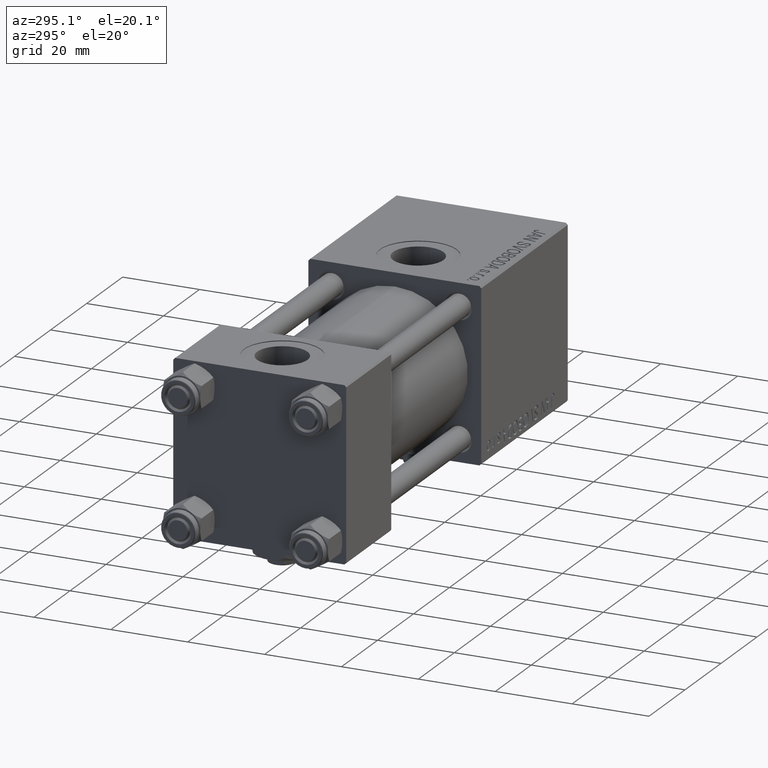
[diagram: clean part render]
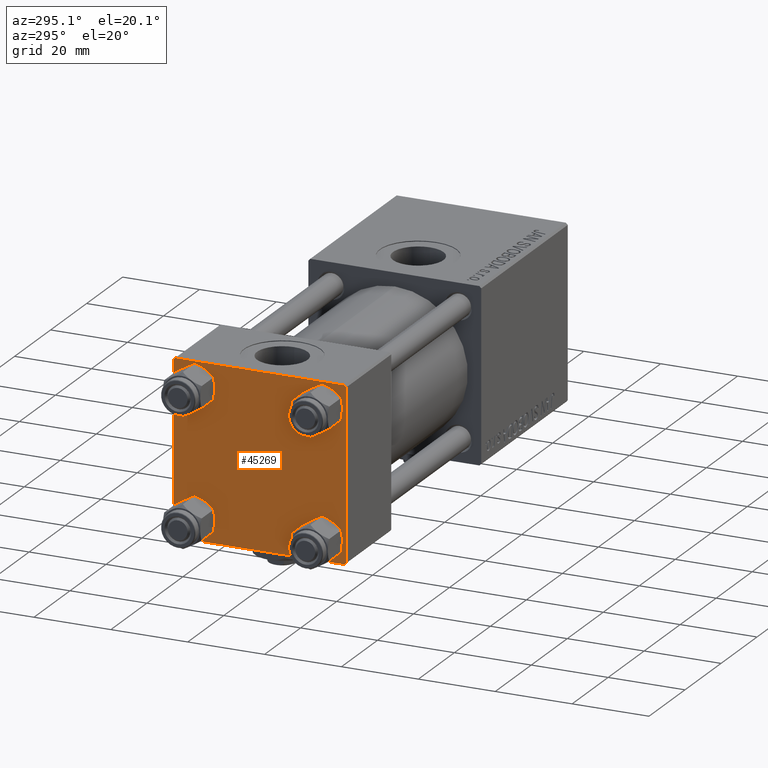
[diagram: same view with one face highlighted and labeled with its STEP entity id]
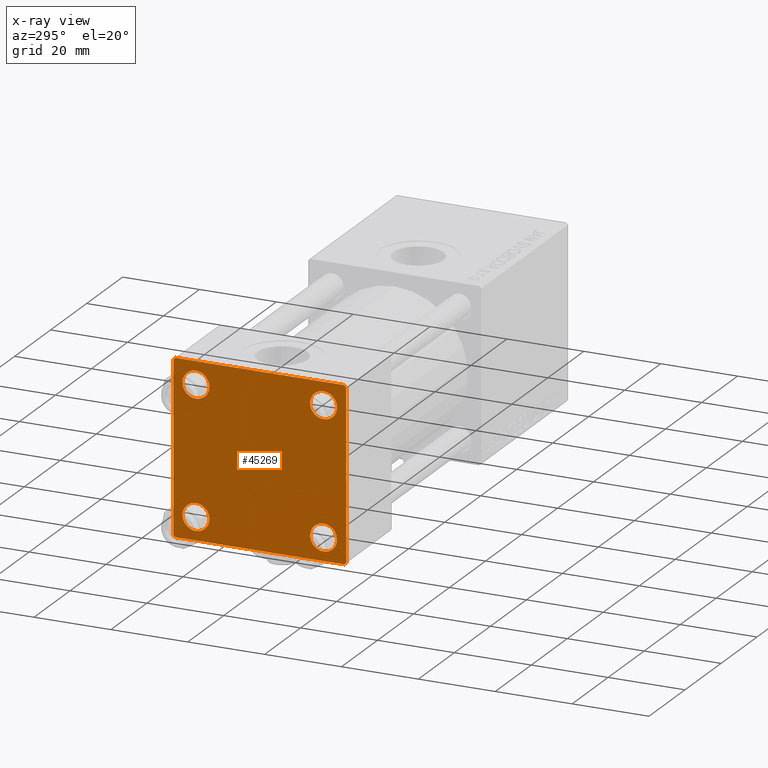
[diagram: x-ray of the same camera — body ghosted, the highlighted face saturated]
A machine part, auxiliary view. The second image highlights one B-rep face of the part: STEP entity #45269.
The next image is the same camera in x-ray: the body ghosted, the highlighted face saturated — about 0% of this face is hidden behind the body in this view.
In plain terms, the highlighted planar face has unit normal (-1, 0, 0).
Its self-contained STEP definition (entity closure, byte-faithful):
#962 = EDGE_CURVE ( 'NONE', #35257, #9221, #41090, .T. ) ;
#1004 = DIRECTION ( 'NONE',  ( 0.000000000000000000, -1.000000000000000000, -7.709882115452476934E-17 ) ) ;
#1393 = ORIENTED_EDGE ( 'NONE', *, *, #43350, .T. ) ;
#1483 = AXIS2_PLACEMENT_3D ( 'NONE', #48618, #40942, #16328 ) ;
#1850 = VERTEX_POINT ( 'NONE', #9843 ) ;
#2342 = DIRECTION ( 'NONE',  ( 1.000000000000000000, -0.000000000000000000, 0.000000000000000000 ) ) ;
#2411 = DIRECTION ( 'NONE',  ( 1.000000000000000000, -0.000000000000000000, 0.000000000000000000 ) ) ;
#2828 = CARTESIAN_POINT ( 'NONE',  ( 0.000000000000000000, 22.50000000000000000, -22.49999999999999645 ) ) ;
#3217 = ORIENTED_EDGE ( 'NONE', *, *, #11549, .F. ) ;
#4116 = FACE_BOUND ( 'NONE', #34199, .T. ) ;
#4137 = CARTESIAN_POINT ( 'NONE',  ( 0.000000000000000000, 16.59999999999999787, -13.10000000000000675 ) ) ;
#4379 = DIRECTION ( 'NONE',  ( -0.000000000000000000, 0.000000000000000000, 1.000000000000000000 ) ) ;
#4381 = DIRECTION ( 'NONE',  ( 1.000000000000000000, -0.000000000000000000, 0.000000000000000000 ) ) ;
#5042 = EDGE_LOOP ( 'NONE', ( #48519, #36080 ) ) ;
#5561 = DIRECTION ( 'NONE',  ( 0.000000000000000000, 0.000000000000000000, 1.000000000000000000 ) ) ;
#5959 = CARTESIAN_POINT ( 'NONE',  ( 0.000000000000000000, 22.50000000000000000, 21.99999999999999645 ) ) ;
#6360 = CARTESIAN_POINT ( 'NONE',  ( 0.000000000000000000, 16.59999999999999787, 16.60000000000000497 ) ) ;
#6571 = CARTESIAN_POINT ( 'NONE',  ( 0.000000000000000000, -21.99999999999997868, 22.50000000000000000 ) ) ;
#6945 = DIRECTION ( 'NONE',  ( 1.000000000000000000, -0.000000000000000000, 0.000000000000000000 ) ) ;
#7469 = CARTESIAN_POINT ( 'NONE',  ( 0.000000000000000000, -16.59999999999999076, 16.60000000000000853 ) ) ;
#7906 = VERTEX_POINT ( 'NONE', #42854 ) ;
#7923 = LINE ( 'NONE', #40748, #46464 ) ;
#8089 = VERTEX_POINT ( 'NONE', #17883 ) ;
#8335 = EDGE_CURVE ( 'NONE', #24307, #24369, #48537, .T. ) ;
#8506 = CARTESIAN_POINT ( 'NONE',  ( 0.000000000000000000, -16.59999999999999076, 13.10000000000001030 ) ) ;
#8780 = CARTESIAN_POINT ( 'NONE',  ( 0.000000000000000000, -22.50000000000000000, -21.99999999999997158 ) ) ;
#9221 = VERTEX_POINT ( 'NONE', #5959 ) ;
#9771 = DIRECTION ( 'NONE',  ( 1.000000000000000000, -0.000000000000000000, 0.000000000000000000 ) ) ;
#9843 = CARTESIAN_POINT ( 'NONE',  ( 0.000000000000000000, 16.59999999999999787, 20.10000000000000142 ) ) ;
#10070 = VECTOR ( 'NONE', #14737, 1000.000000000000000 ) ;
#10102 = AXIS2_PLACEMENT_3D ( 'NONE', #38128, #33119, #5561 ) ;
#10144 = EDGE_CURVE ( 'NONE', #21576, #16813, #21759, .T. ) ;
#10871 = CIRCLE ( 'NONE', #42161, 3.499999999999996003 ) ;
#11298 = AXIS2_PLACEMENT_3D ( 'NONE', #27417, #12311, #4379 ) ;
#11328 = CARTESIAN_POINT ( 'NONE',  ( 0.000000000000000000, -16.59999999999999076, -13.10000000000001030 ) ) ;
#11549 = EDGE_CURVE ( 'NONE', #51337, #24167, #48507, .T. ) ;
#11890 = ORIENTED_EDGE ( 'NONE', *, *, #24341, .T. ) ;
#12168 = ORIENTED_EDGE ( 'NONE', *, *, #28106, .T. ) ;
#12311 = DIRECTION ( 'NONE',  ( -1.000000000000000000, 0.000000000000000000, -0.000000000000000000 ) ) ;
#12518 = ORIENTED_EDGE ( 'NONE', *, *, #21652, .T. ) ;
#13951 = CARTESIAN_POINT ( 'NONE',  ( 0.000000000000000000, 22.50000000000000000, 22.50000000000000355 ) ) ;
#14737 = DIRECTION ( 'NONE',  ( 0.000000000000000000, -1.000000000000000000, -2.312964634635742957E-16 ) ) ;
#15036 = DIRECTION ( 'NONE',  ( 0.000000000000000000, 0.000000000000000000, 1.000000000000000000 ) ) ;
#15056 = CIRCLE ( 'NONE', #44660, 3.499999999999996003 ) ;
#15116 = ORIENTED_EDGE ( 'NONE', *, *, #8335, .T. ) ;
#16263 = EDGE_LOOP ( 'NONE', ( #1393, #44223 ) ) ;
#16328 = DIRECTION ( 'NONE',  ( 0.000000000000000000, 0.000000000000000000, 1.000000000000000000 ) ) ;
#16735 = DIRECTION ( 'NONE',  ( 0.000000000000000000, 0.000000000000000000, -1.000000000000000000 ) ) ;
#16813 = VERTEX_POINT ( 'NONE', #4137 ) ;
#17094 = VERTEX_POINT ( 'NONE', #26862 ) ;
#17138 = CIRCLE ( 'NONE', #22220, 3.499999999999996003 ) ;
#17883 = CARTESIAN_POINT ( 'NONE',  ( 0.000000000000000000, -16.59999999999999076, -20.10000000000000497 ) ) ;
#18346 = AXIS2_PLACEMENT_3D ( 'NONE', #47494, #23133, #43002 ) ;
#20260 = FACE_BOUND ( 'NONE', #16263, .T. ) ;
#20559 = VERTEX_POINT ( 'NONE', #24723 ) ;
#20964 = DIRECTION ( 'NONE',  ( 0.000000000000000000, 0.7071067811865474617, -0.7071067811865474617 ) ) ;
#21576 = VERTEX_POINT ( 'NONE', #37428 ) ;
#21652 = EDGE_CURVE ( 'NONE', #7906, #29187, #38600, .T. ) ;
#21759 = CIRCLE ( 'NONE', #1483, 3.499999999999996003 ) ;
#22115 = EDGE_LOOP ( 'NONE', ( #12518, #24436 ) ) ;
#22220 = AXIS2_PLACEMENT_3D ( 'NONE', #6360, #2411, #42386 ) ;
#23133 = DIRECTION ( 'NONE',  ( 1.000000000000000000, -0.000000000000000000, 0.000000000000000000 ) ) ;
#23211 = EDGE_CURVE ( 'NONE', #8089, #43819, #35275, .T. ) ;
#24167 = VERTEX_POINT ( 'NONE', #8780 ) ;
#24172 = ORIENTED_EDGE ( 'NONE', *, *, #47812, .T. ) ;
#24228 = FACE_BOUND ( 'NONE', #22115, .T. ) ;
#24307 = VERTEX_POINT ( 'NONE', #30327 ) ;
#24341 = EDGE_CURVE ( 'NONE', #51337, #51653, #46738, .T. ) ;
#24369 = VERTEX_POINT ( 'NONE', #41983 ) ;
#24436 = ORIENTED_EDGE ( 'NONE', *, *, #31094, .T. ) ;
#24723 = CARTESIAN_POINT ( 'NONE',  ( 0.000000000000000000, -21.99999999999997158, -22.50000000000000711 ) ) ;
#24855 = EDGE_CURVE ( 'NONE', #16813, #21576, #15056, .T. ) ;
#26650 = LINE ( 'NONE', #2828, #10070 ) ;
#26862 = CARTESIAN_POINT ( 'NONE',  ( 0.000000000000000000, 16.59999999999999787, 13.10000000000000675 ) ) ;
#27417 = CARTESIAN_POINT ( 'NONE',  ( 0.000000000000000000, 0.000000000000000000, 0.000000000000000000 ) ) ;
#28106 = EDGE_CURVE ( 'NONE', #24369, #20559, #26650, .T. ) ;
#28556 = VECTOR ( 'NONE', #16735, 1000.000000000000000 ) ;
#29140 = VECTOR ( 'NONE', #20964, 1000.000000000000114 ) ;
#29187 = VERTEX_POINT ( 'NONE', #8506 ) ;
#29861 = VECTOR ( 'NONE', #1004, 1000.000000000000000 ) ;
#30113 = VECTOR ( 'NONE', #39534, 1000.000000000000000 ) ;
#30327 = CARTESIAN_POINT ( 'NONE',  ( 0.000000000000000000, 22.50000000000000000, -21.99999999999996803 ) ) ;
#30437 = EDGE_LOOP ( 'NONE', ( #36864, #15116, #12168, #24172, #3217, #11890, #31673, #30500 ) ) ;
#30500 = ORIENTED_EDGE ( 'NONE', *, *, #962, .T. ) ;
#30883 = ORIENTED_EDGE ( 'NONE', *, *, #24855, .T. ) ;
#31071 = VECTOR ( 'NONE', #41731, 999.9999999999998863 ) ;
#31094 = EDGE_CURVE ( 'NONE', #29187, #7906, #48954, .T. ) ;
#31673 = ORIENTED_EDGE ( 'NONE', *, *, #44912, .F. ) ;
#32177 = DIRECTION ( 'NONE',  ( 0.000000000000000000, 0.000000000000000000, 1.000000000000000000 ) ) ;
#32280 = EDGE_CURVE ( 'NONE', #9221, #24307, #7923, .T. ) ;
#32882 = CARTESIAN_POINT ( 'NONE',  ( 0.000000000000000000, 22.24999999999999645, 22.24999999999999645 ) ) ;
#33119 = DIRECTION ( 'NONE',  ( 1.000000000000000000, -0.000000000000000000, 0.000000000000000000 ) ) ;
#33546 = LINE ( 'NONE', #13951, #29861 ) ;
#33615 = LINE ( 'NONE', #42340, #47721 ) ;
#34199 = EDGE_LOOP ( 'NONE', ( #30883, #45591 ) ) ;
#34374 = AXIS2_PLACEMENT_3D ( 'NONE', #7469, #6945, #42953 ) ;
#35219 = EDGE_CURVE ( 'NONE', #17094, #1850, #49105, .T. ) ;
#35257 = VERTEX_POINT ( 'NONE', #41699 ) ;
#35275 = CIRCLE ( 'NONE', #18346, 3.499999999999996003 ) ;
#36080 = ORIENTED_EDGE ( 'NONE', *, *, #23211, .T. ) ;
#36135 = CARTESIAN_POINT ( 'NONE',  ( 0.000000000000000000, 16.59999999999999787, 16.60000000000000497 ) ) ;
#36408 = PLANE ( 'NONE',  #11298 ) ;
#36864 = ORIENTED_EDGE ( 'NONE', *, *, #32280, .T. ) ;
#37428 = CARTESIAN_POINT ( 'NONE',  ( 0.000000000000000000, 16.59999999999999787, -20.10000000000000142 ) ) ;
#37838 = DIRECTION ( 'NONE',  ( 0.000000000000000000, -0.7071067811865426878, 0.7071067811865524577 ) ) ;
#38128 = CARTESIAN_POINT ( 'NONE',  ( 0.000000000000000000, -16.59999999999999076, 16.60000000000000853 ) ) ;
#38600 = CIRCLE ( 'NONE', #34374, 3.499999999999996003 ) ;
#39534 = DIRECTION ( 'NONE',  ( -0.000000000000000000, -0.7071067811865426878, -0.7071067811865524577 ) ) ;
#40207 = DIRECTION ( 'NONE',  ( 0.000000000000000000, 0.000000000000000000, -1.000000000000000000 ) ) ;
#40380 = FACE_BOUND ( 'NONE', #5042, .T. ) ;
#40597 = CARTESIAN_POINT ( 'NONE',  ( 0.000000000000000000, 22.25000000000014566, -22.24999999999984013 ) ) ;
#40748 = CARTESIAN_POINT ( 'NONE',  ( 0.000000000000000000, 22.50000000000000000, 22.50000000000000355 ) ) ;
#40942 = DIRECTION ( 'NONE',  ( 1.000000000000000000, -0.000000000000000000, 0.000000000000000000 ) ) ;
#41090 = LINE ( 'NONE', #32882, #29140 ) ;
#41699 = CARTESIAN_POINT ( 'NONE',  ( 0.000000000000000000, 21.99999999999999289, 22.50000000000000355 ) ) ;
#41731 = DIRECTION ( 'NONE',  ( -0.000000000000000000, 0.7071067811865525687, 0.7071067811865425767 ) ) ;
#41983 = CARTESIAN_POINT ( 'NONE',  ( 0.000000000000000000, 21.99999999999999289, -22.49999999999999645 ) ) ;
#42161 = AXIS2_PLACEMENT_3D ( 'NONE', #42329, #9771, #50796 ) ;
#42329 = CARTESIAN_POINT ( 'NONE',  ( 0.000000000000000000, -16.59999999999999076, -16.60000000000000853 ) ) ;
#42340 = CARTESIAN_POINT ( 'NONE',  ( 0.000000000000000000, -22.25000000000014566, -22.24999999999984013 ) ) ;
#42386 = DIRECTION ( 'NONE',  ( 0.000000000000000000, 0.000000000000000000, 1.000000000000000000 ) ) ;
#42574 = CARTESIAN_POINT ( 'NONE',  ( 0.000000000000000000, 16.59999999999999787, -16.60000000000000497 ) ) ;
#42854 = CARTESIAN_POINT ( 'NONE',  ( 0.000000000000000000, -16.59999999999999076, 20.10000000000000853 ) ) ;
#42953 = DIRECTION ( 'NONE',  ( 0.000000000000000000, 0.000000000000000000, 1.000000000000000000 ) ) ;
#43002 = DIRECTION ( 'NONE',  ( 0.000000000000000000, 0.000000000000000000, 1.000000000000000000 ) ) ;
#43350 = EDGE_CURVE ( 'NONE', #1850, #17094, #17138, .T. ) ;
#43819 = VERTEX_POINT ( 'NONE', #11328 ) ;
#44223 = ORIENTED_EDGE ( 'NONE', *, *, #35219, .T. ) ;
#44660 = AXIS2_PLACEMENT_3D ( 'NONE', #42574, #2342, #15036 ) ;
#44912 = EDGE_CURVE ( 'NONE', #35257, #51653, #33546, .T. ) ;
#45269 = ADVANCED_FACE ( 'NONE', ( #24228, #40380, #4116, #20260, #48589 ), #36408, .T. ) ;
#45591 = ORIENTED_EDGE ( 'NONE', *, *, #10144, .T. ) ;
#45717 = AXIS2_PLACEMENT_3D ( 'NONE', #36135, #4381, #32177 ) ;
#46464 = VECTOR ( 'NONE', #40207, 1000.000000000000000 ) ;
#46738 = LINE ( 'NONE', #50966, #31071 ) ;
#47494 = CARTESIAN_POINT ( 'NONE',  ( 0.000000000000000000, -16.59999999999999076, -16.60000000000000853 ) ) ;
#47721 = VECTOR ( 'NONE', #37838, 1000.000000000000000 ) ;
#47812 = EDGE_CURVE ( 'NONE', #20559, #24167, #33615, .T. ) ;
#48507 = LINE ( 'NONE', #49291, #28556 ) ;
#48519 = ORIENTED_EDGE ( 'NONE', *, *, #51630, .T. ) ;
#48537 = LINE ( 'NONE', #40597, #30113 ) ;
#48589 = FACE_OUTER_BOUND ( 'NONE', #30437, .T. ) ;
#48618 = CARTESIAN_POINT ( 'NONE',  ( 0.000000000000000000, 16.59999999999999787, -16.60000000000000497 ) ) ;
#48954 = CIRCLE ( 'NONE', #10102, 3.499999999999996003 ) ;
#49105 = CIRCLE ( 'NONE', #45717, 3.499999999999996003 ) ;
#49291 = CARTESIAN_POINT ( 'NONE',  ( 0.000000000000000000, -22.50000000000000000, 22.50000000000000000 ) ) ;
#50796 = DIRECTION ( 'NONE',  ( 0.000000000000000000, 0.000000000000000000, 1.000000000000000000 ) ) ;
#50966 = CARTESIAN_POINT ( 'NONE',  ( -0.000000000000000000, -22.24999999999984013, 22.25000000000015277 ) ) ;
#51106 = CARTESIAN_POINT ( 'NONE',  ( 0.000000000000000000, -22.50000000000000000, 22.00000000000000000 ) ) ;
#51337 = VERTEX_POINT ( 'NONE', #51106 ) ;
#51630 = EDGE_CURVE ( 'NONE', #43819, #8089, #10871, .T. ) ;
#51653 = VERTEX_POINT ( 'NONE', #6571 ) ;